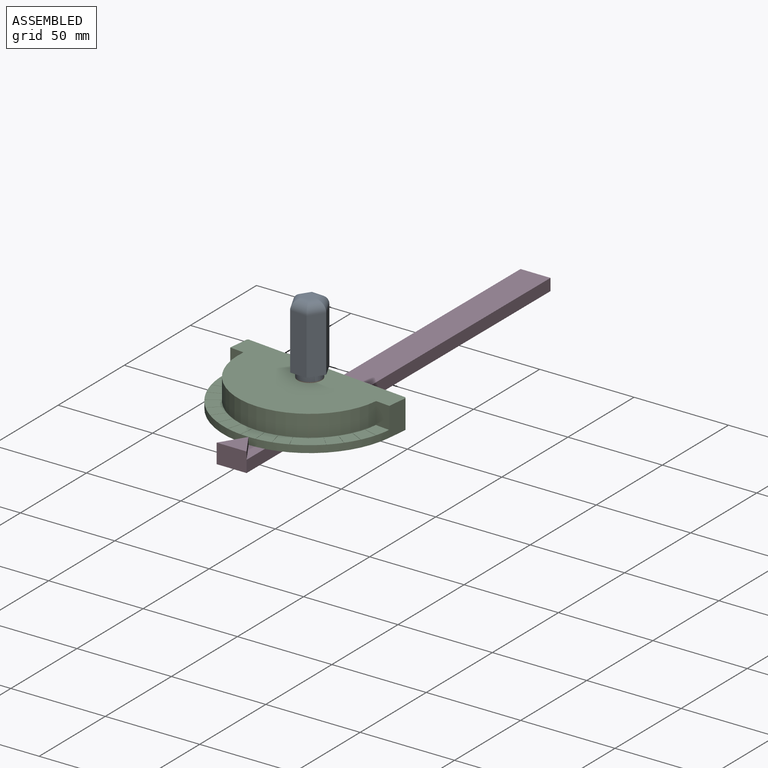
[diagram: assembled view]
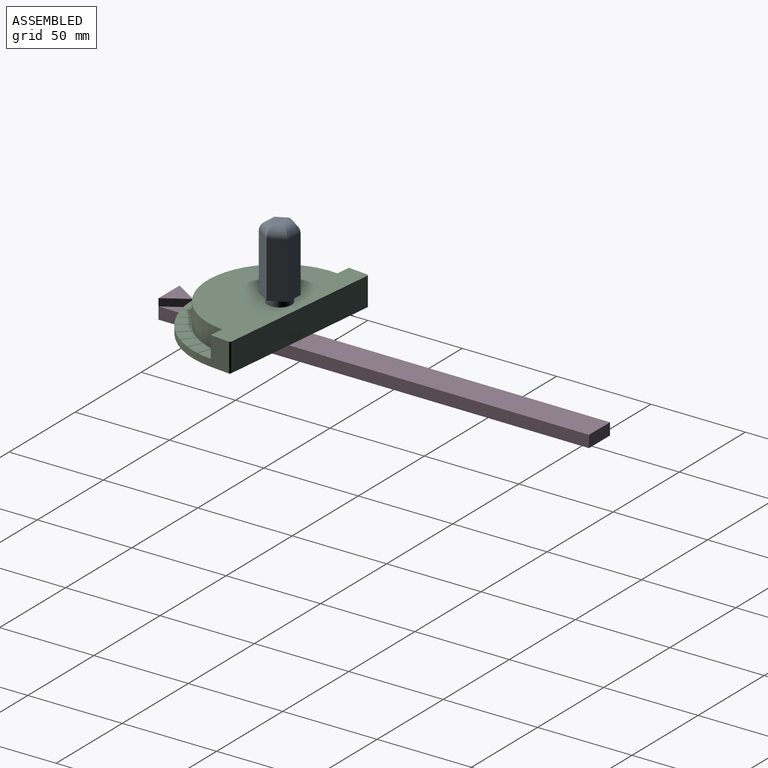
[diagram: assembled view, second angle]
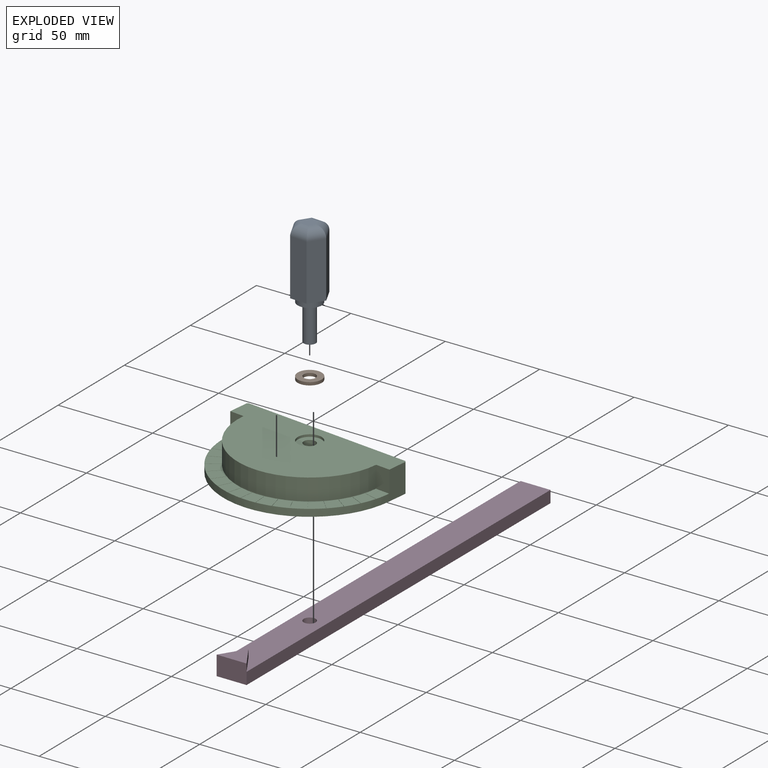
[diagram: exploded view]
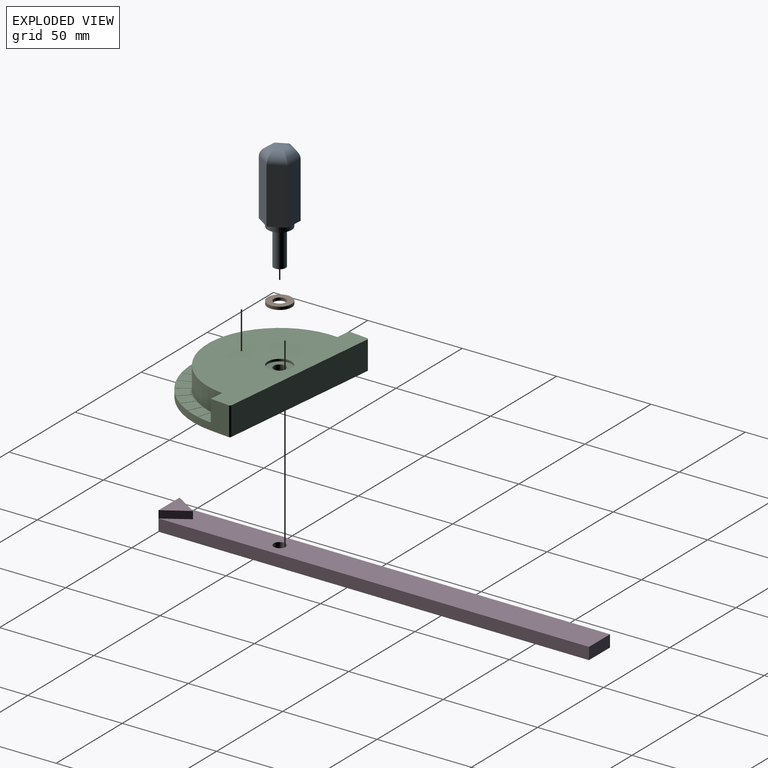
[diagram: exploded view, second angle]
ASSEMBLY  parts=4 mates=3
PART A: 18 faces, bbox 18.3x15.9x57.2 mm
  f0: plane 29.72x7.94mm, normal (0.87,0.5,0), area 272.4mm2, adj f1,f5,f8,f14
  f1: plane 29.72x9.17mm, normal (0,1,0), area 272.4mm2, adj f0,f2,f7,f14
  f2: plane 29.72x7.94mm, normal (-0.87,0.5,0), area 272.4mm2, adj f1,f3,f9,f14
  f3: plane 29.72x7.94mm, normal (-0.87,-0.5,0), area 272.4mm2, adj f2,f4,f11,f14
  f4: plane 29.72x9.17mm, normal (0,-1,0), area 272.4mm2, adj f3,f5,f12,f14
  f5: plane 29.72x7.94mm, normal (0.87,-0.5,0), area 272.4mm2, adj f0,f4,f10,f14
  f6: plane 6.6x5.72mm, normal (0,0,1), area 28.3mm2, adj f7,f8,f9,f10,f11,f12
  f7: cylinder r=5.08mm len=9.17mm, axis (1,0,0), area 56.1mm2, adj f1,f6,f8,f9
  f8: cylinder r=5.08mm len=10.48mm, axis (0.5,-0.87,0), area 56.1mm2, adj f0,f6,f7,f10
  f9: cylinder r=5.08mm len=10.48mm, axis (0.5,0.87,0), area 56.1mm2, adj f2,f6,f7,f11
  f10: cylinder r=5.08mm len=10.48mm, axis (-0.5,-0.87,0), area 56.1mm2, adj f5,f6,f8,f12
  f11: cylinder r=5.08mm len=10.48mm, axis (-0.5,0.87,0), area 56.1mm2, adj f3,f6,f9,f12
  f12: cylinder r=5.08mm len=9.17mm, axis (-1,0,0), area 56.1mm2, adj f4,f6,f10,f11
  f13: cylinder r=6.35mm len=12.7mm, axis (0,0,-1), area 131.7mm2, adj f14,f17
  f14: plane 18.33x15.88mm, normal (0,0,-1), area 91.6mm2, adj f0,f1,f2,f3,f4,f5,f13
  f15: plane 6.35x6.35mm, normal (0,0,-1), area 31.7mm2, adj f16
  f16: cylinder r=3.17mm len=19.05mm, axis (0,0,1), area 380mm2, adj f15,f17
  f17: plane 12.7x12.7mm, normal (0,0,-1), area 95mm2, adj f13,f16
PART B: 4 faces, bbox 12.7x12.7x1.6 mm
  f0: cylinder r=3.17mm len=6.35mm, axis (0,0,-1), area 31.4mm2, adj f2,f3
  f1: cylinder r=6.35mm len=12.7mm, axis (0,0,-1), area 62.8mm2, adj f2,f3
  f2: plane 12.7x12.7mm, normal (0,0,1), area 95mm2, adj f0,f1
  f3: plane 12.7x12.7mm, normal (0,0,-1), area 95mm2, adj f0,f1
PART C: 109 faces, bbox 91.4x57.2x15.2 mm
  f0: plane 91.44x45.87mm, normal (0,0,1), area 983.2mm2, adj f1,f4,f5,f8,f9,f10,f11,f13
  f1: cylinder r=45.72mm len=91.44mm, axis (0,0,-1), area 547.2mm2, adj f0,f3,f5,f6
  f2: plane 91.44x49.53mm, normal (0,0,1), area 3197.1mm2, adj f4,f5,f6,f7,f8,f15,f103,f104
  f3: plane 91.44x56.9mm, normal (0,0,-1), area 4273.6mm2, adj f1,f5,f6,f103,f104,f105,f108
  f4: cylinder r=38.1mm len=76.2mm, axis (0,0,1), area 1369.9mm2, adj f0,f2,f8,f15
  f5: plane 15.24x10.8mm, normal (1,0,0), area 162.8mm2, adj f0,f1,f2,f3,f15,f104
  f6: plane 15.24x10.8mm, normal (-1,0,0), area 164.5mm2, adj f1,f2,f3,f8,f103
  f7: plane 90.17x14.99mm, normal (0,1,0), area 1351.3mm2, adj f2,f103,f104,f105
  f8: plane 11.58x7.62mm, normal (0,-1,0), area 88.2mm2, adj f0,f2,f4,f6,f9,f11,f12
  f9: cylinder r=0.08mm len=0.15mm, axis (0,0,1), area 0mm2, adj f0,f8,f10,f12
  f10: plane 7.23x0.15mm, normal (0,1,0), area 1.1mm2, adj f0,f9,f11,f12
  f11: cylinder r=0.08mm len=0.15mm, axis (0,0,1), area 0mm2, adj f0,f8,f10,f12
  f12: plane 7.38x0.15mm, normal (0,0,1), area 1.1mm2, adj f8,f9,f10,f11
  f13: plane 7.23x0.15mm, normal (0,1,0), area 1.1mm2, adj f0,f14,f16,f17
  f14: cylinder r=0.08mm len=0.15mm, axis (0,0,1), area 0mm2, adj f0,f13,f15,f17
  f15: plane 11.58x7.62mm, normal (0,-1,0), area 88.2mm2, adj f0,f2,f4,f5,f14,f16,f17
  f16: cylinder r=0.08mm len=0.15mm, axis (0,0,1), area 0mm2, adj f0,f13,f15,f17
  f17: plane 7.38x0.15mm, normal (0,0,1), area 1.1mm2, adj f13,f14,f15,f16
  f18: plane 7.12x1.26mm, normal (0.17,0.98,0), area 1.1mm2, adj f0,f19,f21,f22
  f19: cylinder r=0.08mm len=0.15mm, axis (0,0,1), area 0mm2, adj f0,f18,f20,f22
  f20: plane 7.12x1.26mm, normal (-0.17,-0.98,0), area 1.1mm2, adj f0,f19,f21,f22
  f21: cylinder r=0.08mm len=0.15mm, axis (0,0,1), area 0mm2, adj f0,f18,f20,f22
  f22: plane 7.27x1.41mm, normal (0,0,1), area 1.1mm2, adj f18,f19,f20,f21
  f23: plane 6.79x2.47mm, normal (0.34,0.94,0), area 1.1mm2, adj f0,f24,f26,f27
  f24: cylinder r=0.08mm len=0.15mm, axis (0,0,1), area 0mm2, adj f0,f23,f25,f27
  f25: plane 6.79x2.47mm, normal (-0.34,-0.94,0), area 1.1mm2, adj f0,f24,f26,f27
  f26: cylinder r=0.08mm len=0.15mm, axis (0,0,1), area 0mm2, adj f0,f23,f25,f27
  f27: plane 6.94x2.62mm, normal (0,0,1), area 1.1mm2, adj f23,f24,f25,f26
  f28: plane 6.26x3.61mm, normal (0.5,0.87,0), area 1.1mm2, adj f0,f29,f31,f32
  f29: cylinder r=0.08mm len=0.15mm, axis (0,0,1), area 0mm2, adj f0,f28,f30,f32
  f30: plane 6.26x3.61mm, normal (-0.5,-0.87,0), area 1.1mm2, adj f0,f29,f31,f32
  f31: cylinder r=0.08mm len=0.15mm, axis (0,0,1), area 0mm2, adj f0,f28,f30,f32
  f32: plane 6.41x3.77mm, normal (0,0,1), area 1.1mm2, adj f28,f29,f30,f31
  f33: plane 5.54x4.65mm, normal (0.77,0.64,0), area 1.1mm2, adj f0,f34,f36,f37
  f34: cylinder r=0.08mm len=0.15mm, axis (0,0,1), area 0mm2, adj f0,f33,f35,f37
  f35: plane 5.54x4.65mm, normal (-0.77,-0.64,0), area 1.1mm2, adj f0,f34,f36,f37
  f36: cylinder r=0.08mm len=0.15mm, axis (0,0,1), area 0mm2, adj f0,f33,f35,f37
  f37: plane 5.69x4.8mm, normal (0,0,1), area 1.1mm2, adj f33,f34,f35,f36
  f38: plane 5.54x4.65mm, normal (0.64,0.77,0), area 1.1mm2, adj f0,f39,f41,f42
  f39: cylinder r=0.08mm len=0.15mm, axis (0,0,1), area 0mm2, adj f0,f38,f40,f42
  f40: plane 5.54x4.65mm, normal (-0.64,-0.77,0), area 1.1mm2, adj f0,f39,f41,f42
  f41: cylinder r=0.08mm len=0.15mm, axis (0,0,1), area 0mm2, adj f0,f38,f40,f42
  f42: plane 5.69x4.8mm, normal (0,0,1), area 1.1mm2, adj f38,f39,f40,f41
  f43: plane 6.26x3.61mm, normal (0.87,0.5,0), area 1.1mm2, adj f0,f44,f46,f47
  f44: cylinder r=0.08mm len=0.15mm, axis (0,0,1), area 0mm2, adj f0,f43,f45,f47
  f45: plane 6.26x3.61mm, normal (-0.87,-0.5,0), area 1.1mm2, adj f0,f44,f46,f47
  f46: cylinder r=0.08mm len=0.15mm, axis (0,0,1), area 0mm2, adj f0,f43,f45,f47
  f47: plane 6.41x3.77mm, normal (0,0,1), area 1.1mm2, adj f43,f44,f45,f46
  f48: plane 6.79x2.47mm, normal (0.94,0.34,0), area 1.1mm2, adj f0,f49,f51,f52
  f49: cylinder r=0.08mm len=0.15mm, axis (0,0,1), area 0mm2, adj f0,f48,f50,f52
  f50: plane 6.79x2.47mm, normal (-0.94,-0.34,0), area 1.1mm2, adj f0,f49,f51,f52
  f51: cylinder r=0.08mm len=0.15mm, axis (0,0,1), area 0mm2, adj f0,f48,f50,f52
  f52: plane 6.94x2.62mm, normal (0,0,1), area 1.1mm2, adj f48,f49,f50,f51
  f53: plane 7.12x1.26mm, normal (0.98,0.17,0), area 1.1mm2, adj f0,f54,f56,f57
  f54: cylinder r=0.08mm len=0.15mm, axis (0,0,1), area 0mm2, adj f0,f53,f55,f57
  f55: plane 7.12x1.26mm, normal (-0.98,-0.17,0), area 1.1mm2, adj f0,f54,f56,f57
  f56: cylinder r=0.08mm len=0.15mm, axis (0,0,1), area 0mm2, adj f0,f53,f55,f57
  f57: plane 7.27x1.41mm, normal (0,0,1), area 1.1mm2, adj f53,f54,f55,f56
  f58: plane 7.23x0.15mm, normal (1,0,0), area 1.1mm2, adj f0,f59,f61,f62
  f59: cylinder r=0.08mm len=0.15mm, axis (0,0,1), area 0mm2, adj f0,f58,f60,f62
  f60: plane 7.23x0.15mm, normal (-1,0,0), area 1.1mm2, adj f0,f59,f61,f62
  f61: cylinder r=0.08mm len=0.15mm, axis (0,0,1), area 0mm2, adj f0,f58,f60,f62
  f62: plane 7.38x0.15mm, normal (0,0,1), area 1.1mm2, adj f58,f59,f60,f61
  f63: plane 7.12x1.26mm, normal (0.17,-0.98,0), area 1.1mm2, adj f0,f64,f66,f67
  f64: cylinder r=0.08mm len=0.15mm, axis (0,0,1), area 0mm2, adj f0,f63,f65,f67
  f65: plane 7.12x1.26mm, normal (-0.17,0.98,0), area 1.1mm2, adj f0,f64,f66,f67
  f66: cylinder r=0.08mm len=0.15mm, axis (0,0,1), area 0mm2, adj f0,f63,f65,f67
  f67: plane 7.27x1.41mm, normal (0,0,1), area 1.1mm2, adj f63,f64,f65,f66
  f68: plane 6.79x2.47mm, normal (0.34,-0.94,0), area 1.1mm2, adj f0,f69,f71,f72
  f69: cylinder r=0.08mm len=0.15mm, axis (0,0,1), area 0mm2, adj f0,f68,f70,f72
  f70: plane 6.79x2.47mm, normal (-0.34,0.94,0), area 1.1mm2, adj f0,f69,f71,f72
  f71: cylinder r=0.08mm len=0.15mm, axis (0,0,1), area 0mm2, adj f0,f68,f70,f72
  f72: plane 6.94x2.62mm, normal (0,0,1), area 1.1mm2, adj f68,f69,f70,f71
  f73: plane 6.26x3.61mm, normal (0.5,-0.87,0), area 1.1mm2, adj f0,f74,f76,f77
  f74: cylinder r=0.08mm len=0.15mm, axis (0,0,1), area 0mm2, adj f0,f73,f75,f77
  f75: plane 6.26x3.61mm, normal (-0.5,0.87,0), area 1.1mm2, adj f0,f74,f76,f77
  f76: cylinder r=0.08mm len=0.15mm, axis (0,0,1), area 0mm2, adj f0,f73,f75,f77
  f77: plane 6.41x3.77mm, normal (0,0,1), area 1.1mm2, adj f73,f74,f75,f76
  f78: plane 5.54x4.65mm, normal (0.64,-0.77,0), area 1.1mm2, adj f0,f79,f81,f82
  f79: cylinder r=0.08mm len=0.15mm, axis (0,0,1), area 0mm2, adj f0,f78,f80,f82
  f80: plane 5.54x4.65mm, normal (-0.64,0.77,0), area 1.1mm2, adj f0,f79,f81,f82
  f81: cylinder r=0.08mm len=0.15mm, axis (0,0,1), area 0mm2, adj f0,f78,f80,f82
  f82: plane 5.69x4.8mm, normal (0,0,1), area 1.1mm2, adj f78,f79,f80,f81
  f83: plane 5.54x4.65mm, normal (0.77,-0.64,0), area 1.1mm2, adj f0,f84,f86,f87
  f84: cylinder r=0.08mm len=0.15mm, axis (0,0,1), area 0mm2, adj f0,f83,f85,f87
  f85: plane 5.54x4.65mm, normal (-0.77,0.64,0), area 1.1mm2, adj f0,f84,f86,f87
  f86: cylinder r=0.08mm len=0.15mm, axis (0,0,1), area 0mm2, adj f0,f83,f85,f87
  f87: plane 5.69x4.8mm, normal (0,0,1), area 1.1mm2, adj f83,f84,f85,f86
  f88: plane 6.26x3.61mm, normal (0.87,-0.5,0), area 1.1mm2, adj f0,f89,f91,f92
  f89: cylinder r=0.08mm len=0.15mm, axis (0,0,1), area 0mm2, adj f0,f88,f90,f92
  f90: plane 6.26x3.61mm, normal (-0.87,0.5,0), area 1.1mm2, adj f0,f89,f91,f92
  f91: cylinder r=0.08mm len=0.15mm, axis (0,0,1), area 0mm2, adj f0,f88,f90,f92
  f92: plane 6.41x3.77mm, normal (0,0,1), area 1.1mm2, adj f88,f89,f90,f91
  f93: plane 6.79x2.47mm, normal (0.94,-0.34,0), area 1.1mm2, adj f0,f94,f96,f97
  f94: cylinder r=0.08mm len=0.15mm, axis (0,0,1), area 0mm2, adj f0,f93,f95,f97
  f95: plane 6.79x2.47mm, normal (-0.94,0.34,0), area 1.1mm2, adj f0,f94,f96,f97
  f96: cylinder r=0.08mm len=0.15mm, axis (0,0,1), area 0mm2, adj f0,f93,f95,f97
  f97: plane 6.94x2.62mm, normal (0,0,1), area 1.1mm2, adj f93,f94,f95,f96
  f98: plane 7.12x1.26mm, normal (0.98,-0.17,0), area 1.1mm2, adj f0,f99,f101,f102
  f99: cylinder r=0.08mm len=0.15mm, axis (0,0,1), area 0mm2, adj f0,f98,f100,f102
  f100: plane 7.12x1.26mm, normal (-0.98,0.17,0), area 1.1mm2, adj f0,f99,f101,f102
  f101: cylinder r=0.08mm len=0.15mm, axis (0,0,1), area 0mm2, adj f0,f98,f100,f102
  f102: plane 7.27x1.41mm, normal (0,0,1), area 1.1mm2, adj f98,f99,f100,f101
  f103: plane 15.24x0.64mm, normal (-0.71,0.71,0), area 13.7mm2, adj f2,f3,f6,f7,f105
  f104: plane 15.24x0.64mm, normal (0.71,0.71,0), area 13.7mm2, adj f2,f3,f5,f7,f105
  f105: cylinder r=0.25mm len=90.68mm, axis (-1,0,0), area 36mm2, adj f3,f7,f103,f104
  f106: cylinder r=6.35mm len=12.7mm, axis (0,0,1), area 48.6mm2, adj f2,f107
  f107: plane 12.7x12.7mm, normal (0,0,1), area 95mm2, adj f106,f108
  f108: cylinder r=3.17mm len=14.02mm, axis (0,0,1), area 279.7mm2, adj f3,f107
PART D: 10 faces, bbox 15.9x228.6x10.3 mm
  f0: plane 228.6x6.35mm, normal (1,0,0), area 1451.6mm2, adj f1,f3,f4,f5
  f1: plane 228.6x15.88mm, normal (0,0,1), area 3496.5mm2, adj f0,f2,f5,f6,f7,f8
  f2: plane 228.6x6.35mm, normal (-1,0,0), area 1451.6mm2, adj f1,f3,f4,f5
  f3: plane 228.6x15.88mm, normal (0,0,-1), area 3597.4mm2, adj f0,f2,f4,f5,f6
  f4: plane 15.88x10.31mm, normal (0,-1,0), area 163.7mm2, adj f0,f2,f3,f7,f8,f9
  f5: plane 15.88x6.35mm, normal (0,1,0), area 100.8mm2, adj f0,f1,f2,f3
  f6: cylinder r=3.17mm len=6.35mm, axis (0,0,1), area 126.7mm2, adj f1,f3
  f7: plane 12.7x7.94mm, normal (0.85,0.53,0), area 59.3mm2, adj f1,f4,f8,f9
  f8: plane 12.7x7.94mm, normal (-0.85,0.53,0), area 59.3mm2, adj f1,f4,f7,f9
  f9: plane 15.88x12.7mm, normal (0,0,1), area 100.8mm2, adj f4,f7,f8
PLACE A rot(axis=(0,0,-1),3.4deg) t=(-4.03,-129.71,359.57)mm
PLACE B rot(axis=(0,0,-1),6.1deg) t=(-83.87,-121.85,358)mm
PLACE C rot(axis=(0,0,-1),6.1deg) t=(-221.21,-86.45,343.97)mm
PLACE D rot(axis=(0,0,-1),0.2deg) t=(-115.16,-69.4,343.14)mm fixed
MATE revolute A.f13 <-> B.f0  axis (0,0,-1) through (-221.21,-86.45,359.57)mm
MATE fastened C.f1 <-> B.f0  axis (0,0,1) through (-221.21,-86.45,358)mm
MATE revolute D.f6 <-> C.f1  axis (0,0,1) through (-221.21,-86.45,343.97)mm
